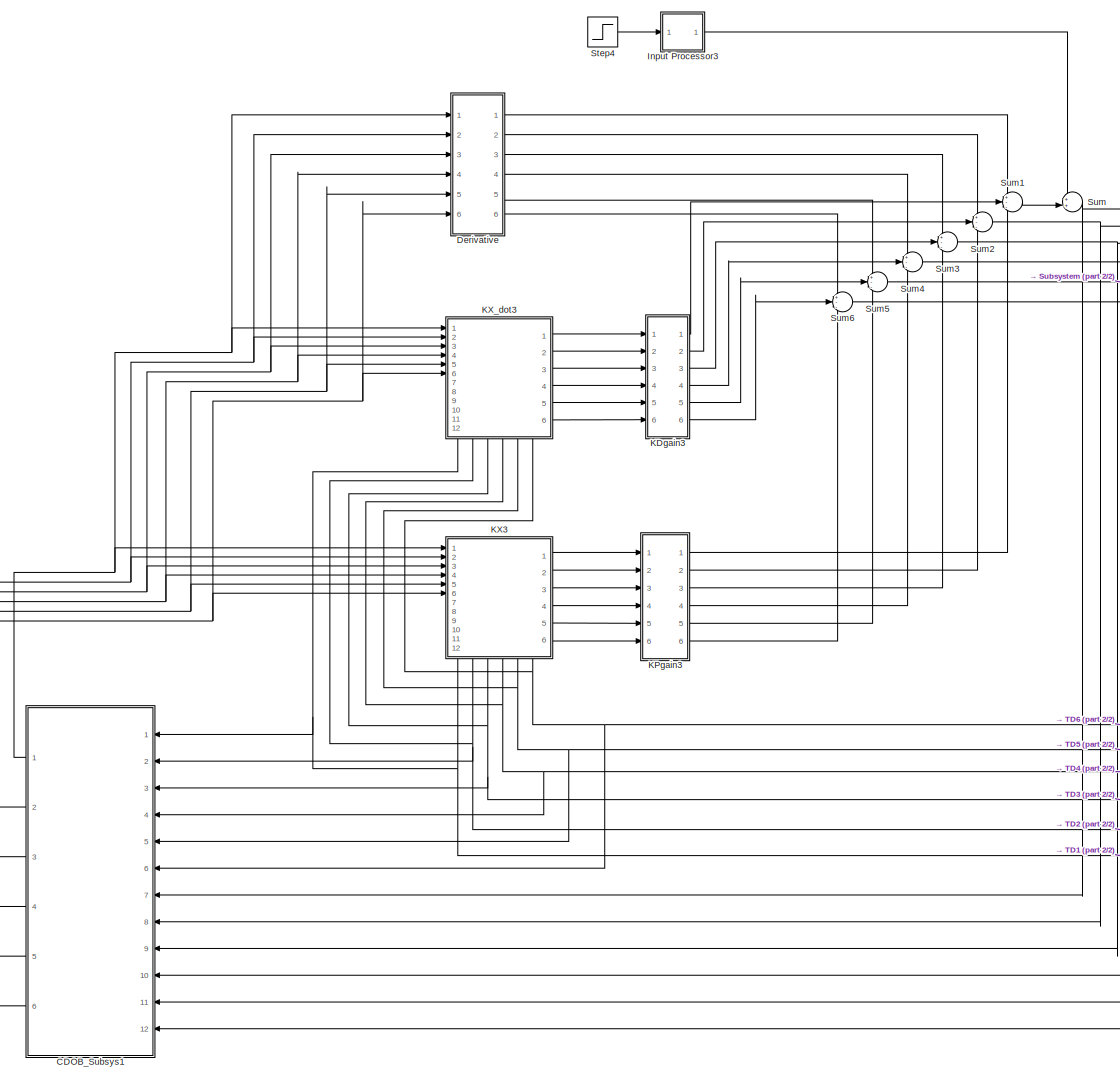
[diagram: root canvas - part 1/2, center side, full height]
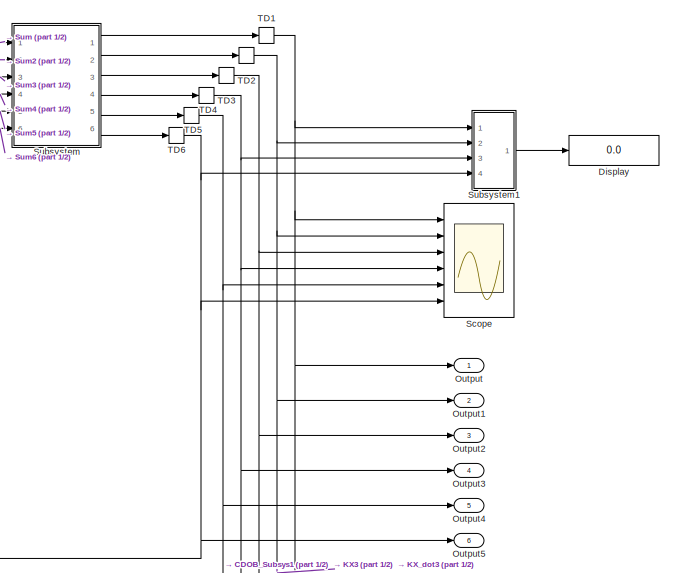
[diagram: root canvas - part 2/2, middle right region]
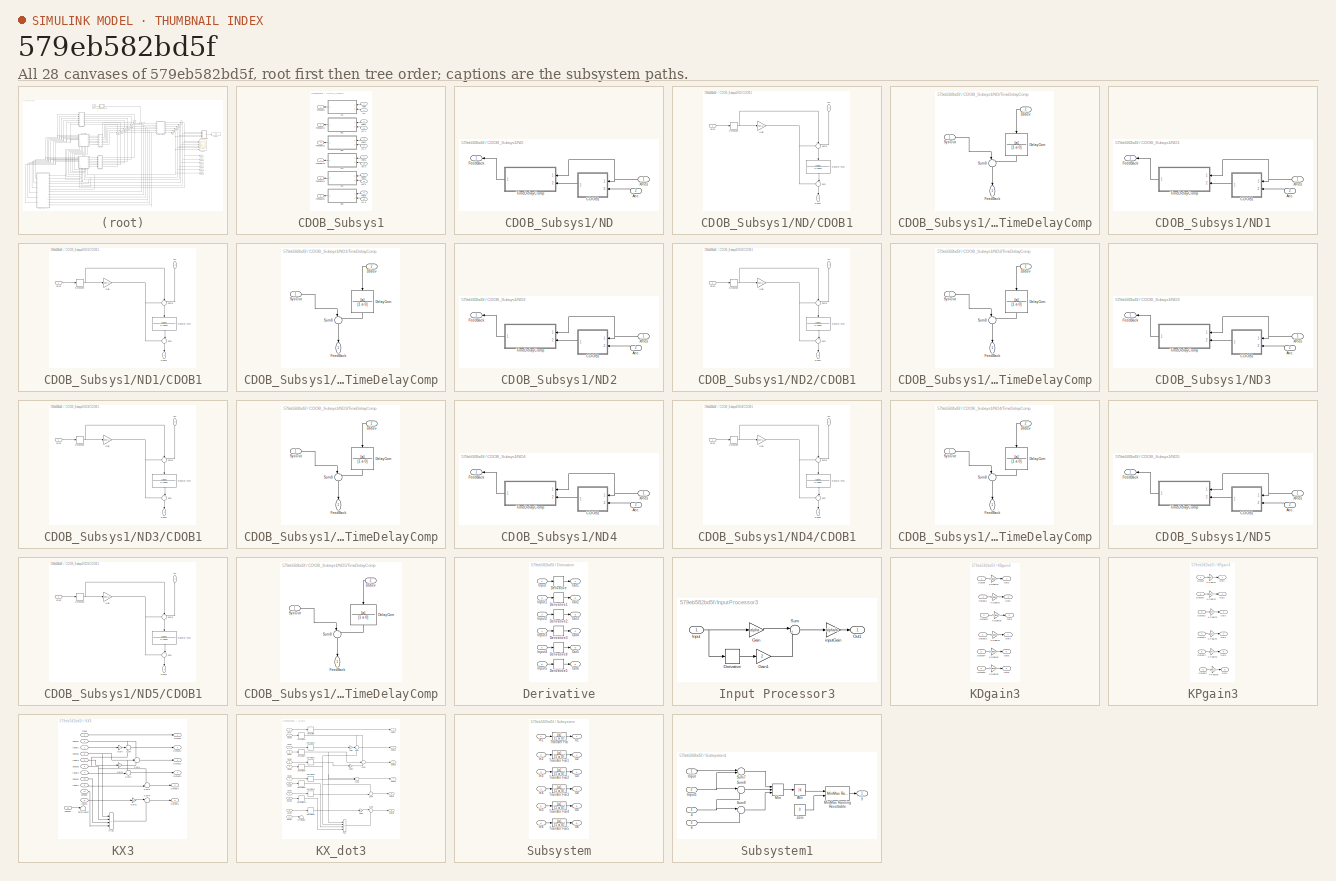
[diagram: thumbnail index - all 28 canvases of the model, root first then tree order]
MODEL slx_579eb582bd5f
KIND model
CONFIG AbsTol = auto
CONFIG EnableMultiTasking = off
CONFIG FixedStep = auto
CONFIG MaxStep = auto
CONFIG MinStep = auto
CONFIG RelTol = 1e-3
CONFIG SampleTimeConstraint = Unconstrained
CONFIG SolverName = VariableStepAuto
CONFIG StartTime = 0.0
CONFIG StopTime = 60.0
BLOCK [SubSystem] CDOB_Subsys1
  NameLocation = top
  Ports = [12, 6]
  RequestExecContextInheritance = off
BLOCK [Inport] CDOB_Subsys1/Acc.
  Port = 7
BLOCK [Inport] CDOB_Subsys1/Acc.1
  Port = 8
BLOCK [Inport] CDOB_Subsys1/Acc.2
  Port = 9
BLOCK [Inport] CDOB_Subsys1/Acc.3
  Port = 10
BLOCK [Inport] CDOB_Subsys1/Acc.4
  Port = 11
BLOCK [Inport] CDOB_Subsys1/Acc.5
  Port = 12
BLOCK [Outport] CDOB_Subsys1/FeedBack
BLOCK [Outport] CDOB_Subsys1/FeedBack1
  Port = 2
BLOCK [Outport] CDOB_Subsys1/FeedBack2
  Port = 3
BLOCK [Outport] CDOB_Subsys1/FeedBack3
  Port = 4
BLOCK [Outport] CDOB_Subsys1/FeedBack4
  Port = 5
BLOCK [Outport] CDOB_Subsys1/FeedBack5
  Port = 6
BLOCK [SubSystem] CDOB_Subsys1/ND
  NameLocation = top
  Ports = [2, 1]
  RequestExecContextInheritance = off
BLOCK [Inport] CDOB_Subsys1/ND/Acc.
  Port = 2
BLOCK [SubSystem] CDOB_Subsys1/ND/CDOB1
  NameLocation = top
  Ports = [2, 1]
  RequestExecContextInheritance = off
BLOCK [Inport] CDOB_Subsys1/ND/CDOB1/Acc.
  NameLocation = left
  Port = 2
BLOCK [Derivative] CDOB_Subsys1/ND/CDOB1/Derivative
  CoefficientInTFapproximation = 0
BLOCK [Outport] CDOB_Subsys1/ND/CDOB1/Dobsv
  NameLocation = left
BLOCK [Gain] CDOB_Subsys1/ND/CDOB1/Gain
  Gain = gnet/a
BLOCK [Sum] CDOB_Subsys1/ND/CDOB1/Sum
  Inputs = -+|
  NameLocation = left
  Ports = [2, 1]
BLOCK [Sum] CDOB_Subsys1/ND/CDOB1/Sum8
  Inputs = +-+
  NameLocation = left
  Ports = [3, 1]
BLOCK [TransferFcn] CDOB_Subsys1/ND/CDOB1/Transfer Fcn2
  Denominator = [1 gnet]
  NameLocation = left
  Numerator = [gnet]
BLOCK [Inport] CDOB_Subsys1/ND/CDOB1/XRes
BLOCK [Outport] CDOB_Subsys1/ND/FeedBack
BLOCK [SubSystem] CDOB_Subsys1/ND/TimeDelayComp
  NameLocation = top
  Ports = [2, 1]
  RequestExecContextInheritance = off
BLOCK [TransferFcn] CDOB_Subsys1/ND/TimeDelayComp/DelayCom
  Denominator = [1 a 0]
  NameLocation = left
  Numerator = [a]
BLOCK [Inport] CDOB_Subsys1/ND/TimeDelayComp/Dobsv
  NameLocation = top
  Port = 2
BLOCK [Outport] CDOB_Subsys1/ND/TimeDelayComp/FeedBack
  NameLocation = left
BLOCK [Sum] CDOB_Subsys1/ND/TimeDelayComp/Sum8
  Inputs = |++
  NameLocation = left
  Ports = [2, 1]
BLOCK [Inport] CDOB_Subsys1/ND/TimeDelayComp/SysOut
BLOCK [Inport] CDOB_Subsys1/ND/XRes
BLOCK [SubSystem] CDOB_Subsys1/ND1
  NameLocation = top
  Ports = [2, 1]
  RequestExecContextInheritance = off
BLOCK [Inport] CDOB_Subsys1/ND1/Acc.
  Port = 2
BLOCK [SubSystem] CDOB_Subsys1/ND1/CDOB1
  NameLocation = top
  Ports = [2, 1]
  RequestExecContextInheritance = off
BLOCK [Inport] CDOB_Subsys1/ND1/CDOB1/Acc.
  NameLocation = left
  Port = 2
BLOCK [Derivative] CDOB_Subsys1/ND1/CDOB1/Derivative
  CoefficientInTFapproximation = 0
BLOCK [Outport] CDOB_Subsys1/ND1/CDOB1/Dobsv
  NameLocation = left
BLOCK [Gain] CDOB_Subsys1/ND1/CDOB1/Gain
  Gain = gnet/a
BLOCK [Sum] CDOB_Subsys1/ND1/CDOB1/Sum
  Inputs = -+|
  NameLocation = left
  Ports = [2, 1]
BLOCK [Sum] CDOB_Subsys1/ND1/CDOB1/Sum8
  Inputs = +-+
  NameLocation = left
  Ports = [3, 1]
BLOCK [TransferFcn] CDOB_Subsys1/ND1/CDOB1/Transfer Fcn2
  Denominator = [1 gnet]
  NameLocation = left
  Numerator = [gnet]
BLOCK [Inport] CDOB_Subsys1/ND1/CDOB1/XRes
BLOCK [Outport] CDOB_Subsys1/ND1/FeedBack
BLOCK [SubSystem] CDOB_Subsys1/ND1/TimeDelayComp
  NameLocation = top
  Ports = [2, 1]
  RequestExecContextInheritance = off
BLOCK [TransferFcn] CDOB_Subsys1/ND1/TimeDelayComp/DelayCom
  Denominator = [1 a 0]
  NameLocation = left
  Numerator = [a]
BLOCK [Inport] CDOB_Subsys1/ND1/TimeDelayComp/Dobsv
  NameLocation = top
  Port = 2
BLOCK [Outport] CDOB_Subsys1/ND1/TimeDelayComp/FeedBack
  NameLocation = left
BLOCK [Sum] CDOB_Subsys1/ND1/TimeDelayComp/Sum8
  Inputs = |++
  NameLocation = left
  Ports = [2, 1]
BLOCK [Inport] CDOB_Subsys1/ND1/TimeDelayComp/SysOut
BLOCK [Inport] CDOB_Subsys1/ND1/XRes
BLOCK [SubSystem] CDOB_Subsys1/ND2
  NameLocation = top
  Ports = [2, 1]
  RequestExecContextInheritance = off
BLOCK [Inport] CDOB_Subsys1/ND2/Acc.
  Port = 2
BLOCK [SubSystem] CDOB_Subsys1/ND2/CDOB1
  NameLocation = top
  Ports = [2, 1]
  RequestExecContextInheritance = off
BLOCK [Inport] CDOB_Subsys1/ND2/CDOB1/Acc.
  NameLocation = left
  Port = 2
BLOCK [Derivative] CDOB_Subsys1/ND2/CDOB1/Derivative
  CoefficientInTFapproximation = 0
BLOCK [Outport] CDOB_Subsys1/ND2/CDOB1/Dobsv
  NameLocation = left
BLOCK [Gain] CDOB_Subsys1/ND2/CDOB1/Gain
  Gain = gnet/a
BLOCK [Sum] CDOB_Subsys1/ND2/CDOB1/Sum
  Inputs = -+|
  NameLocation = left
  Ports = [2, 1]
BLOCK [Sum] CDOB_Subsys1/ND2/CDOB1/Sum8
  Inputs = +-+
  NameLocation = left
  Ports = [3, 1]
BLOCK [TransferFcn] CDOB_Subsys1/ND2/CDOB1/Transfer Fcn2
  Denominator = [1 gnet]
  NameLocation = left
  Numerator = [gnet]
BLOCK [Inport] CDOB_Subsys1/ND2/CDOB1/XRes
BLOCK [Outport] CDOB_Subsys1/ND2/FeedBack
BLOCK [SubSystem] CDOB_Subsys1/ND2/TimeDelayComp
  NameLocation = top
  Ports = [2, 1]
  RequestExecContextInheritance = off
BLOCK [TransferFcn] CDOB_Subsys1/ND2/TimeDelayComp/DelayCom
  Denominator = [1 a 0]
  NameLocation = left
  Numerator = [a]
BLOCK [Inport] CDOB_Subsys1/ND2/TimeDelayComp/Dobsv
  NameLocation = top
  Port = 2
BLOCK [Outport] CDOB_Subsys1/ND2/TimeDelayComp/FeedBack
  NameLocation = left
BLOCK [Sum] CDOB_Subsys1/ND2/TimeDelayComp/Sum8
  Inputs = |++
  NameLocation = left
  Ports = [2, 1]
BLOCK [Inport] CDOB_Subsys1/ND2/TimeDelayComp/SysOut
BLOCK [Inport] CDOB_Subsys1/ND2/XRes
BLOCK [SubSystem] CDOB_Subsys1/ND3
  NameLocation = top
  Ports = [2, 1]
  RequestExecContextInheritance = off
BLOCK [Inport] CDOB_Subsys1/ND3/Acc.
  Port = 2
BLOCK [SubSystem] CDOB_Subsys1/ND3/CDOB1
  NameLocation = top
  Ports = [2, 1]
  RequestExecContextInheritance = off
BLOCK [Inport] CDOB_Subsys1/ND3/CDOB1/Acc.
  NameLocation = left
  Port = 2
BLOCK [Derivative] CDOB_Subsys1/ND3/CDOB1/Derivative
  CoefficientInTFapproximation = 0
BLOCK [Outport] CDOB_Subsys1/ND3/CDOB1/Dobsv
  NameLocation = left
BLOCK [Gain] CDOB_Subsys1/ND3/CDOB1/Gain
  Gain = gnet/a
BLOCK [Sum] CDOB_Subsys1/ND3/CDOB1/Sum
  Inputs = -+|
  NameLocation = left
  Ports = [2, 1]
BLOCK [Sum] CDOB_Subsys1/ND3/CDOB1/Sum8
  Inputs = +-+
  NameLocation = left
  Ports = [3, 1]
BLOCK [TransferFcn] CDOB_Subsys1/ND3/CDOB1/Transfer Fcn2
  Denominator = [1 gnet]
  NameLocation = left
  Numerator = [gnet]
BLOCK [Inport] CDOB_Subsys1/ND3/CDOB1/XRes
BLOCK [Outport] CDOB_Subsys1/ND3/FeedBack
BLOCK [SubSystem] CDOB_Subsys1/ND3/TimeDelayComp
  NameLocation = top
  Ports = [2, 1]
  RequestExecContextInheritance = off
BLOCK [TransferFcn] CDOB_Subsys1/ND3/TimeDelayComp/DelayCom
  Denominator = [1 a 0]
  NameLocation = left
  Numerator = [a]
BLOCK [Inport] CDOB_Subsys1/ND3/TimeDelayComp/Dobsv
  NameLocation = top
  Port = 2
BLOCK [Outport] CDOB_Subsys1/ND3/TimeDelayComp/FeedBack
  NameLocation = left
BLOCK [Sum] CDOB_Subsys1/ND3/TimeDelayComp/Sum8
  Inputs = |++
  NameLocation = left
  Ports = [2, 1]
BLOCK [Inport] CDOB_Subsys1/ND3/TimeDelayComp/SysOut
BLOCK [Inport] CDOB_Subsys1/ND3/XRes
BLOCK [SubSystem] CDOB_Subsys1/ND4
  NameLocation = top
  Ports = [2, 1]
  RequestExecContextInheritance = off
BLOCK [Inport] CDOB_Subsys1/ND4/Acc.
  Port = 2
BLOCK [SubSystem] CDOB_Subsys1/ND4/CDOB1
  NameLocation = top
  Ports = [2, 1]
  RequestExecContextInheritance = off
BLOCK [Inport] CDOB_Subsys1/ND4/CDOB1/Acc.
  NameLocation = left
  Port = 2
BLOCK [Derivative] CDOB_Subsys1/ND4/CDOB1/Derivative
  CoefficientInTFapproximation = 0
BLOCK [Outport] CDOB_Subsys1/ND4/CDOB1/Dobsv
  NameLocation = left
BLOCK [Gain] CDOB_Subsys1/ND4/CDOB1/Gain
  Gain = gnet/a
BLOCK [Sum] CDOB_Subsys1/ND4/CDOB1/Sum
  Inputs = -+|
  NameLocation = left
  Ports = [2, 1]
BLOCK [Sum] CDOB_Subsys1/ND4/CDOB1/Sum8
  Inputs = +-+
  NameLocation = left
  Ports = [3, 1]
BLOCK [TransferFcn] CDOB_Subsys1/ND4/CDOB1/Transfer Fcn2
  Denominator = [1 gnet]
  NameLocation = left
  Numerator = [gnet]
BLOCK [Inport] CDOB_Subsys1/ND4/CDOB1/XRes
BLOCK [Outport] CDOB_Subsys1/ND4/FeedBack
BLOCK [SubSystem] CDOB_Subsys1/ND4/TimeDelayComp
  NameLocation = top
  Ports = [2, 1]
  RequestExecContextInheritance = off
BLOCK [TransferFcn] CDOB_Subsys1/ND4/TimeDelayComp/DelayCom
  Denominator = [1 a 0]
  NameLocation = left
  Numerator = [a]
BLOCK [Inport] CDOB_Subsys1/ND4/TimeDelayComp/Dobsv
  NameLocation = top
  Port = 2
BLOCK [Outport] CDOB_Subsys1/ND4/TimeDelayComp/FeedBack
  NameLocation = left
BLOCK [Sum] CDOB_Subsys1/ND4/TimeDelayComp/Sum8
  Inputs = |++
  NameLocation = left
  Ports = [2, 1]
BLOCK [Inport] CDOB_Subsys1/ND4/TimeDelayComp/SysOut
BLOCK [Inport] CDOB_Subsys1/ND4/XRes
BLOCK [SubSystem] CDOB_Subsys1/ND5
  NameLocation = top
  Ports = [2, 1]
  RequestExecContextInheritance = off
BLOCK [Inport] CDOB_Subsys1/ND5/Acc.
  Port = 2
BLOCK [SubSystem] CDOB_Subsys1/ND5/CDOB1
  NameLocation = top
  Ports = [2, 1]
  RequestExecContextInheritance = off
BLOCK [Inport] CDOB_Subsys1/ND5/CDOB1/Acc.
  NameLocation = left
  Port = 2
BLOCK [Derivative] CDOB_Subsys1/ND5/CDOB1/Derivative
  CoefficientInTFapproximation = 0
BLOCK [Outport] CDOB_Subsys1/ND5/CDOB1/Dobsv
  NameLocation = left
BLOCK [Gain] CDOB_Subsys1/ND5/CDOB1/Gain
  Gain = gnet/a
BLOCK [Sum] CDOB_Subsys1/ND5/CDOB1/Sum
  Inputs = -+|
  NameLocation = left
  Ports = [2, 1]
BLOCK [Sum] CDOB_Subsys1/ND5/CDOB1/Sum8
  Inputs = +-+
  NameLocation = left
  Ports = [3, 1]
BLOCK [TransferFcn] CDOB_Subsys1/ND5/CDOB1/Transfer Fcn2
  Denominator = [1 gnet]
  NameLocation = left
  Numerator = [gnet]
BLOCK [Inport] CDOB_Subsys1/ND5/CDOB1/XRes
BLOCK [Outport] CDOB_Subsys1/ND5/FeedBack
BLOCK [SubSystem] CDOB_Subsys1/ND5/TimeDelayComp
  NameLocation = top
  Ports = [2, 1]
  RequestExecContextInheritance = off
BLOCK [TransferFcn] CDOB_Subsys1/ND5/TimeDelayComp/DelayCom
  Denominator = [1 a 0]
  NameLocation = left
  Numerator = [a]
BLOCK [Inport] CDOB_Subsys1/ND5/TimeDelayComp/Dobsv
  NameLocation = top
  Port = 2
BLOCK [Outport] CDOB_Subsys1/ND5/TimeDelayComp/FeedBack
  NameLocation = left
BLOCK [Sum] CDOB_Subsys1/ND5/TimeDelayComp/Sum8
  Inputs = |++
  NameLocation = left
  Ports = [2, 1]
BLOCK [Inport] CDOB_Subsys1/ND5/TimeDelayComp/SysOut
BLOCK [Inport] CDOB_Subsys1/ND5/XRes
BLOCK [Inport] CDOB_Subsys1/XRes
BLOCK [Inport] CDOB_Subsys1/XRes1
  Port = 2
BLOCK [Inport] CDOB_Subsys1/XRes2
  Port = 3
BLOCK [Inport] CDOB_Subsys1/XRes3
  Port = 4
BLOCK [Inport] CDOB_Subsys1/XRes4
  Port = 5
BLOCK [Inport] CDOB_Subsys1/XRes5
  Port = 6
BLOCK [SubSystem] Derivative
  Ports = [6, 6]
  RequestExecContextInheritance = off
BLOCK [Derivative] Derivative/Derivative
BLOCK [Derivative] Derivative/Derivative1
BLOCK [Derivative] Derivative/Derivative2
BLOCK [Derivative] Derivative/Derivative3
BLOCK [Derivative] Derivative/Derivative4
BLOCK [Derivative] Derivative/Derivative5
BLOCK [Inport] Derivative/Input
BLOCK [Inport] Derivative/Input1
  Port = 2
BLOCK [Inport] Derivative/Input2
  Port = 3
BLOCK [Inport] Derivative/Input3
  Port = 4
BLOCK [Inport] Derivative/Input4
  Port = 5
BLOCK [Inport] Derivative/Input5
  Port = 6
BLOCK [Outport] Derivative/Out1
BLOCK [Outport] Derivative/Out2
  Port = 2
BLOCK [Outport] Derivative/Out3
  Port = 3
BLOCK [Outport] Derivative/Out4
  Port = 4
BLOCK [Outport] Derivative/Out5
  Port = 5
BLOCK [Outport] Derivative/Out6
  Port = 6
BLOCK [Display] Display
  Decimation = 1
  Ports = [1]
BLOCK [SubSystem] Input Processor3
  Ports = [1, 1]
  RequestExecContextInheritance = off
BLOCK [Derivative] Input Processor3/Derivative
BLOCK [Gain] Input Processor3/Gain
  Gain = alpha
BLOCK [Gain] Input Processor3/Gain1
  Gain = 2
BLOCK [Inport] Input Processor3/Input
BLOCK [Outport] Input Processor3/Out1
BLOCK [Sum] Input Processor3/Sum
  Inputs = |++
  Ports = [2, 1]
BLOCK [Gain] Input Processor3/inputGain
  Gain = alpha/a
BLOCK [SubSystem] KDgain3
  Ports = [6, 6]
  RequestExecContextInheritance = off
BLOCK [Gain] KDgain3/KDgain1
  Gain = 2*alpha/a
BLOCK [Gain] KDgain3/KDgain2
  Gain = 2*alpha/a
BLOCK [Gain] KDgain3/KDgain3
  Gain = 2*alpha/a
BLOCK [Gain] KDgain3/KDgain4
  Gain = 2*alpha/a
BLOCK [Gain] KDgain3/KDgain5
  Gain = 2*alpha/a
BLOCK [Gain] KDgain3/KDgain6
  Gain = 2*alpha/a
BLOCK [Outport] KDgain3/Out1
BLOCK [Outport] KDgain3/Out2
  Port = 2
BLOCK [Outport] KDgain3/Out3
  Port = 3
BLOCK [Outport] KDgain3/Out4
  Port = 4
BLOCK [Outport] KDgain3/Out5
  Port = 5
BLOCK [Outport] KDgain3/Out6
  Port = 6
BLOCK [Inport] KDgain3/Output
BLOCK [Inport] KDgain3/Output1
  Port = 2
BLOCK [Inport] KDgain3/Output2
  Port = 3
BLOCK [Inport] KDgain3/Output3
  Port = 4
BLOCK [Inport] KDgain3/Output4
  Port = 5
BLOCK [Inport] KDgain3/Output5
  Port = 6
BLOCK [SubSystem] KPgain3
  Ports = [6, 6]
  RequestExecContextInheritance = off
BLOCK [Gain] KPgain3/KPgain1
  Gain = alpha^2/a
BLOCK [Gain] KPgain3/KPgain2
  Gain = alpha^2/a
BLOCK [Gain] KPgain3/KPgain3
  Gain = alpha^2/a
BLOCK [Gain] KPgain3/KPgain4
  Gain = alpha^2/a
BLOCK [Gain] KPgain3/KPgain5
  Gain = alpha^2/a
BLOCK [Gain] KPgain3/KPgain6
  Gain = alpha^2/a
BLOCK [Outport] KPgain3/Out1
BLOCK [Outport] KPgain3/Out2
  Port = 2
BLOCK [Outport] KPgain3/Out3
  Port = 3
BLOCK [Outport] KPgain3/Out4
  Port = 4
BLOCK [Outport] KPgain3/Out5
  Port = 5
BLOCK [Outport] KPgain3/Out6
  Port = 6
BLOCK [Inport] KPgain3/Output
BLOCK [Inport] KPgain3/Output1
  Port = 2
BLOCK [Inport] KPgain3/Output2
  Port = 3
BLOCK [Inport] KPgain3/Output3
  Port = 4
BLOCK [Inport] KPgain3/Output4
  Port = 5
BLOCK [Inport] KPgain3/Output5
  Port = 6
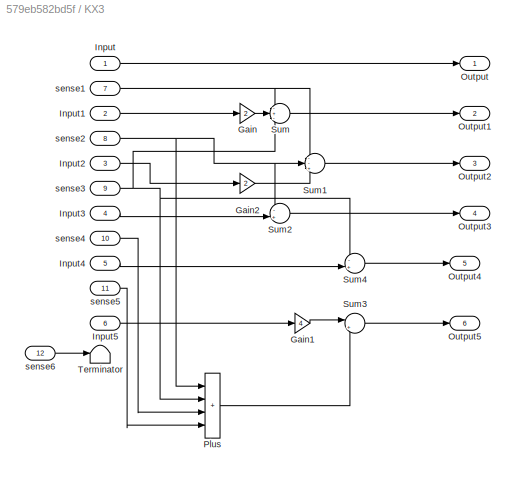
BLOCK [SubSystem] KX3
  NameLocation = top
  PortSchema = {"entries":[{"content":{"sides":[{"content":{"connectorIds":["In1","In2","In3","In4","In5","In6"]},"type":"ConnectorPlacement.EquallySpacedRectSide","uuid":"24ff0189-2e26-4de2-9c90-2043606e3d63"},{"content":{"connectorIds":["Out1","Out2","Out3","Out4","Out5","Out6"],"side":"RIGHT"},"type":"ConnectorPlacement.EquallySpacedRectSide","uuid":"7efe01dd-8101-429e-adc6-a10b45356e48"},{"content":{"connect...<+487ch>
  Ports = [12, 6]
  RequestExecContextInheritance = off
BLOCK [Gain] KX3/Gain
  Gain = 2
BLOCK [Gain] KX3/Gain1
  Gain = 4
BLOCK [Gain] KX3/Gain2
  Gain = 2
BLOCK [Inport] KX3/Input
BLOCK [Inport] KX3/Input1
  Port = 2
BLOCK [Inport] KX3/Input2
  Port = 3
BLOCK [Inport] KX3/Input3
  Port = 4
BLOCK [Inport] KX3/Input4
  Port = 5
BLOCK [Inport] KX3/Input5
  Port = 6
BLOCK [Outport] KX3/Output
BLOCK [Outport] KX3/Output1
  Port = 2
BLOCK [Outport] KX3/Output2
  Port = 3
BLOCK [Outport] KX3/Output3
  Port = 4
BLOCK [Outport] KX3/Output4
  Port = 5
BLOCK [Outport] KX3/Output5
  Port = 6
BLOCK [Sum] KX3/Plus
  IconShape = rectangular
  Inputs = ++++
  Ports = [4, 1]
BLOCK [Sum] KX3/Sum
  Inputs = -+-
  Ports = [3, 1]
BLOCK [Sum] KX3/Sum1
  Inputs = --+
  Ports = [3, 1]
BLOCK [Sum] KX3/Sum2
  Inputs = -+|
  Ports = [2, 1]
BLOCK [Sum] KX3/Sum3
  Inputs = |+-
  Ports = [2, 1]
BLOCK [Sum] KX3/Sum4
  Inputs = -+|
  Ports = [2, 1]
BLOCK [Terminator] KX3/Terminator
BLOCK [Inport] KX3/sense1
  Port = 7
BLOCK [Inport] KX3/sense2
  Port = 8
BLOCK [Inport] KX3/sense3
  Port = 9
BLOCK [Inport] KX3/sense4
  Port = 10
BLOCK [Inport] KX3/sense5
  Port = 11
BLOCK [Inport] KX3/sense6
  Port = 12
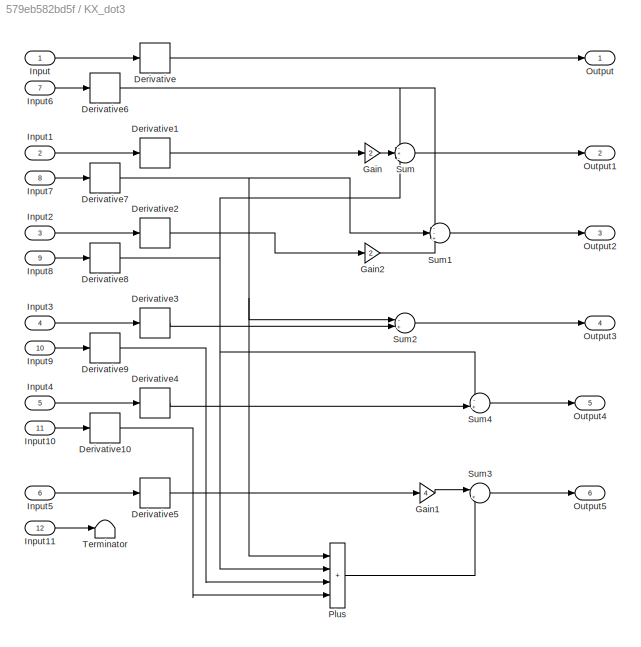
BLOCK [SubSystem] KX_dot3
  NameLocation = top
  PortSchema = {"entries":[{"content":{"sides":[{"content":{"connectorIds":["In1","In2","In3","In4","In5","In6"]},"type":"ConnectorPlacement.EquallySpacedRectSide","uuid":"24ff0189-2e26-4de2-9c90-2043606e3d63"},{"content":{"connectorIds":["Out1","Out2","Out3","Out4","Out5","Out6"],"side":"RIGHT"},"type":"ConnectorPlacement.EquallySpacedRectSide","uuid":"7efe01dd-8101-429e-adc6-a10b45356e48"},{"content":{"connect...<+487ch>
  Ports = [12, 6]
  RequestExecContextInheritance = off
BLOCK [Derivative] KX_dot3/Derivative
BLOCK [Derivative] KX_dot3/Derivative1
BLOCK [Derivative] KX_dot3/Derivative10
BLOCK [Derivative] KX_dot3/Derivative2
BLOCK [Derivative] KX_dot3/Derivative3
BLOCK [Derivative] KX_dot3/Derivative4
BLOCK [Derivative] KX_dot3/Derivative5
BLOCK [Derivative] KX_dot3/Derivative6
BLOCK [Derivative] KX_dot3/Derivative7
BLOCK [Derivative] KX_dot3/Derivative8
BLOCK [Derivative] KX_dot3/Derivative9
BLOCK [Gain] KX_dot3/Gain
  Gain = 2
BLOCK [Gain] KX_dot3/Gain1
  Gain = 4
BLOCK [Gain] KX_dot3/Gain2
  Gain = 2
BLOCK [Inport] KX_dot3/Input
BLOCK [Inport] KX_dot3/Input1
  Port = 2
BLOCK [Inport] KX_dot3/Input10
  Port = 11
BLOCK [Inport] KX_dot3/Input11
  Port = 12
BLOCK [Inport] KX_dot3/Input2
  Port = 3
BLOCK [Inport] KX_dot3/Input3
  Port = 4
BLOCK [Inport] KX_dot3/Input4
  Port = 5
BLOCK [Inport] KX_dot3/Input5
  Port = 6
BLOCK [Inport] KX_dot3/Input6
  Port = 7
BLOCK [Inport] KX_dot3/Input7
  Port = 8
BLOCK [Inport] KX_dot3/Input8
  Port = 9
BLOCK [Inport] KX_dot3/Input9
  Port = 10
BLOCK [Outport] KX_dot3/Output
BLOCK [Outport] KX_dot3/Output1
  Port = 2
BLOCK [Outport] KX_dot3/Output2
  Port = 3
BLOCK [Outport] KX_dot3/Output3
  Port = 4
BLOCK [Outport] KX_dot3/Output4
  Port = 5
BLOCK [Outport] KX_dot3/Output5
  Port = 6
BLOCK [Sum] KX_dot3/Plus
  IconShape = rectangular
  Inputs = ++++
  Ports = [4, 1]
BLOCK [Sum] KX_dot3/Sum
  Inputs = -+-
  Ports = [3, 1]
BLOCK [Sum] KX_dot3/Sum1
  Inputs = --+
  Ports = [3, 1]
BLOCK [Sum] KX_dot3/Sum2
  Inputs = -+|
  Ports = [2, 1]
BLOCK [Sum] KX_dot3/Sum3
  Inputs = |+-
  Ports = [2, 1]
BLOCK [Sum] KX_dot3/Sum4
  Inputs = -+|
  Ports = [2, 1]
BLOCK [Terminator] KX_dot3/Terminator
BLOCK [Outport] Output
BLOCK [Outport] Output1
  Port = 2
BLOCK [Outport] Output2
  Port = 3
BLOCK [Outport] Output3
  Port = 4
BLOCK [Outport] Output4
  Port = 5
BLOCK [Outport] Output5
  Port = 6
BLOCK [Scope] Scope
  Floating = off
  NumInputPorts = 6
  Ports = [6]
  ScopeSpecificationString = Simulink.scopes.TimeScopeBlockCfg('CurrentConfiguration', extmgr.ConfigurationSet(extmgr.Configuration('Core','General UI',true),extmgr.Configuration('Core','Source UI',true),extmgr.Configuration('Sources','WiredSimulink',true),extmgr.Configuration('Visuals','Time Domain',true,'SerializedDisplays',{struct('MinYLimReal','-0.12682','MaxYLimReal','1.14138','YLabelReal','','MinYLimMag','0.00000','MaxY...<+1384ch>
BLOCK [Step] Step4
  SampleTime = 0
  Time = 0
BLOCK [SubSystem] Subsystem
  Ports = [6, 6]
  RequestExecContextInheritance = off
BLOCK [Inport] Subsystem/In1
BLOCK [Inport] Subsystem/In2
  Port = 2
BLOCK [Inport] Subsystem/In3
  Port = 3
BLOCK [Inport] Subsystem/In4
  Port = 4
BLOCK [Inport] Subsystem/In5
  Port = 5
BLOCK [Inport] Subsystem/In6
  Port = 6
BLOCK [Outport] Subsystem/O1
BLOCK [Outport] Subsystem/O2
  Port = 2
BLOCK [Outport] Subsystem/O3
  Port = 3
BLOCK [Outport] Subsystem/O4
  Port = 4
BLOCK [Outport] Subsystem/O5
  Port = 5
BLOCK [Outport] Subsystem/O6
  Port = 6
BLOCK [TransferFcn] Subsystem/Transfer Fcn
  Denominator = [1 a 0]
  Numerator = [a]
BLOCK [TransferFcn] Subsystem/Transfer Fcn1
  Denominator = [1 a 0]
  Numerator = [a]
BLOCK [TransferFcn] Subsystem/Transfer Fcn2
  Denominator = [1 a 0]
  Numerator = [a]
BLOCK [TransferFcn] Subsystem/Transfer Fcn3
  Denominator = [1 a 0]
  Numerator = [a]
BLOCK [TransferFcn] Subsystem/Transfer Fcn4
  Denominator = [1 a 0]
  Numerator = [a]
BLOCK [TransferFcn] Subsystem/Transfer Fcn5
  Denominator = [1 a 0]
  Numerator = [a]
BLOCK [SubSystem] Subsystem1
  Ports = [4, 1]
  RequestExecContextInheritance = off
BLOCK [Inport] Subsystem1/4
  Port = 3
BLOCK [Inport] Subsystem1/6
  Port = 4
BLOCK [Abs] Subsystem1/Abs
  SaturateOnIntegerOverflow = off
BLOCK [Inport] Subsystem1/Input
BLOCK [Inport] Subsystem1/Input1
  Port = 2
BLOCK [MinMax] Subsystem1/Min
  Function = max
  Inputs = 3
  Ports = [3, 1]
BLOCK [Reference] Subsystem1/MinMax Running Resettable  REF=simulink/Math
Operations/MinMax
Running
Resettable
  Ports = [2, 1]
  SourceBlock = simulink/Math\nOperations/MinMax\nRunning\nResettable
  SourceProductBaseCode = SL
  SourceType = MinMax Running Resettable
BLOCK [Sum] Subsystem1/Sum7
  Inputs = |+-
  Ports = [2, 1]
BLOCK [Sum] Subsystem1/Sum8
  Inputs = |+-
  Ports = [2, 1]
BLOCK [Sum] Subsystem1/Sum9
  Inputs = |+-
  Ports = [2, 1]
BLOCK [Constant] Subsystem1/Zero
  OutDataTypeStr = Inherit: Inherit via back propagation
  Value = 0
BLOCK [Outport] Subsystem1/y
BLOCK [Sum] Sum
  Inputs = ++|
  Ports = [2, 1]
BLOCK [Sum] Sum1
  Inputs = +--
  Ports = [3, 1]
BLOCK [Sum] Sum2
  Inputs = +--
  Ports = [3, 1]
BLOCK [Sum] Sum3
  Inputs = +--
  Ports = [3, 1]
BLOCK [Sum] Sum4
  Inputs = +--
  Ports = [3, 1]
BLOCK [Sum] Sum5
  Inputs = +--
  Ports = [3, 1]
BLOCK [Sum] Sum6
  Inputs = +--
  Ports = [3, 1]
BLOCK [TransportDelay] TD1
  DelayTime = delay_a
  Ports = [1, 1]
BLOCK [TransportDelay] TD2
  DelayTime = delay_a
  Ports = [1, 1]
BLOCK [TransportDelay] TD3
  DelayTime = delay_a
  Ports = [1, 1]
BLOCK [TransportDelay] TD4
  DelayTime = delay_a
  Ports = [1, 1]
BLOCK [TransportDelay] TD5
  DelayTime = delay_a
  Ports = [1, 1]
BLOCK [TransportDelay] TD6
  DelayTime = delay_a
  Ports = [1, 1]
LINE CDOB_Subsys1/Acc.1:1 -> CDOB_Subsys1/ND1:2
LINE CDOB_Subsys1/Acc.2:1 -> CDOB_Subsys1/ND2:2
LINE CDOB_Subsys1/Acc.3:1 -> CDOB_Subsys1/ND3:2
LINE CDOB_Subsys1/Acc.4:1 -> CDOB_Subsys1/ND4:2
LINE CDOB_Subsys1/Acc.5:1 -> CDOB_Subsys1/ND5:2
LINE CDOB_Subsys1/Acc.:1 -> CDOB_Subsys1/ND:2
LINE CDOB_Subsys1/ND/Acc.:1 -> CDOB_Subsys1/ND/CDOB1:2
LINE CDOB_Subsys1/ND/CDOB1/Acc.:1 -> CDOB_Subsys1/ND/CDOB1/Sum8:3
NET CDOB_Subsys1/ND/CDOB1/Derivative:1 -> CDOB_Subsys1/ND/CDOB1/Gain:1, CDOB_Subsys1/ND/CDOB1/Sum8:2
NET CDOB_Subsys1/ND/CDOB1/Gain:1 -> CDOB_Subsys1/ND/CDOB1/Sum8:1, CDOB_Subsys1/ND/CDOB1/Sum:1
LINE CDOB_Subsys1/ND/CDOB1/Sum8:1 -> CDOB_Subsys1/ND/CDOB1/Transfer Fcn2:1
LINE CDOB_Subsys1/ND/CDOB1/Sum:1 -> CDOB_Subsys1/ND/CDOB1/Dobsv:1
LINE CDOB_Subsys1/ND/CDOB1/Transfer Fcn2:1 -> CDOB_Subsys1/ND/CDOB1/Sum:2
LINE CDOB_Subsys1/ND/CDOB1/XRes:1 -> CDOB_Subsys1/ND/CDOB1/Derivative:1
LINE CDOB_Subsys1/ND/CDOB1:1 -> CDOB_Subsys1/ND/TimeDelayComp:2
LINE CDOB_Subsys1/ND/TimeDelayComp/DelayCom:1 -> CDOB_Subsys1/ND/TimeDelayComp/Sum8:2
LINE CDOB_Subsys1/ND/TimeDelayComp/Dobsv:1 -> CDOB_Subsys1/ND/TimeDelayComp/DelayCom:1
LINE CDOB_Subsys1/ND/TimeDelayComp/Sum8:1 -> CDOB_Subsys1/ND/TimeDelayComp/FeedBack:1
LINE CDOB_Subsys1/ND/TimeDelayComp/SysOut:1 -> CDOB_Subsys1/ND/TimeDelayComp/Sum8:1
LINE CDOB_Subsys1/ND/TimeDelayComp:1 -> CDOB_Subsys1/ND/FeedBack:1
NET CDOB_Subsys1/ND/XRes:1 -> CDOB_Subsys1/ND/CDOB1:1, CDOB_Subsys1/ND/TimeDelayComp:1
LINE CDOB_Subsys1/ND1/Acc.:1 -> CDOB_Subsys1/ND1/CDOB1:2
LINE CDOB_Subsys1/ND1/CDOB1/Acc.:1 -> CDOB_Subsys1/ND1/CDOB1/Sum8:3
NET CDOB_Subsys1/ND1/CDOB1/Derivative:1 -> CDOB_Subsys1/ND1/CDOB1/Gain:1, CDOB_Subsys1/ND1/CDOB1/Sum8:2
NET CDOB_Subsys1/ND1/CDOB1/Gain:1 -> CDOB_Subsys1/ND1/CDOB1/Sum8:1, CDOB_Subsys1/ND1/CDOB1/Sum:1
LINE CDOB_Subsys1/ND1/CDOB1/Sum8:1 -> CDOB_Subsys1/ND1/CDOB1/Transfer Fcn2:1
LINE CDOB_Subsys1/ND1/CDOB1/Sum:1 -> CDOB_Subsys1/ND1/CDOB1/Dobsv:1
LINE CDOB_Subsys1/ND1/CDOB1/Transfer Fcn2:1 -> CDOB_Subsys1/ND1/CDOB1/Sum:2
LINE CDOB_Subsys1/ND1/CDOB1/XRes:1 -> CDOB_Subsys1/ND1/CDOB1/Derivative:1
LINE CDOB_Subsys1/ND1/CDOB1:1 -> CDOB_Subsys1/ND1/TimeDelayComp:2
LINE CDOB_Subsys1/ND1/TimeDelayComp/DelayCom:1 -> CDOB_Subsys1/ND1/TimeDelayComp/Sum8:2
LINE CDOB_Subsys1/ND1/TimeDelayComp/Dobsv:1 -> CDOB_Subsys1/ND1/TimeDelayComp/DelayCom:1
LINE CDOB_Subsys1/ND1/TimeDelayComp/Sum8:1 -> CDOB_Subsys1/ND1/TimeDelayComp/FeedBack:1
LINE CDOB_Subsys1/ND1/TimeDelayComp/SysOut:1 -> CDOB_Subsys1/ND1/TimeDelayComp/Sum8:1
LINE CDOB_Subsys1/ND1/TimeDelayComp:1 -> CDOB_Subsys1/ND1/FeedBack:1
NET CDOB_Subsys1/ND1/XRes:1 -> CDOB_Subsys1/ND1/CDOB1:1, CDOB_Subsys1/ND1/TimeDelayComp:1
LINE CDOB_Subsys1/ND1:1 -> CDOB_Subsys1/FeedBack1:1
LINE CDOB_Subsys1/ND2/Acc.:1 -> CDOB_Subsys1/ND2/CDOB1:2
LINE CDOB_Subsys1/ND2/CDOB1/Acc.:1 -> CDOB_Subsys1/ND2/CDOB1/Sum8:3
NET CDOB_Subsys1/ND2/CDOB1/Derivative:1 -> CDOB_Subsys1/ND2/CDOB1/Gain:1, CDOB_Subsys1/ND2/CDOB1/Sum8:2
NET CDOB_Subsys1/ND2/CDOB1/Gain:1 -> CDOB_Subsys1/ND2/CDOB1/Sum8:1, CDOB_Subsys1/ND2/CDOB1/Sum:1
LINE CDOB_Subsys1/ND2/CDOB1/Sum8:1 -> CDOB_Subsys1/ND2/CDOB1/Transfer Fcn2:1
LINE CDOB_Subsys1/ND2/CDOB1/Sum:1 -> CDOB_Subsys1/ND2/CDOB1/Dobsv:1
LINE CDOB_Subsys1/ND2/CDOB1/Transfer Fcn2:1 -> CDOB_Subsys1/ND2/CDOB1/Sum:2
LINE CDOB_Subsys1/ND2/CDOB1/XRes:1 -> CDOB_Subsys1/ND2/CDOB1/Derivative:1
LINE CDOB_Subsys1/ND2/CDOB1:1 -> CDOB_Subsys1/ND2/TimeDelayComp:2
LINE CDOB_Subsys1/ND2/TimeDelayComp/DelayCom:1 -> CDOB_Subsys1/ND2/TimeDelayComp/Sum8:2
LINE CDOB_Subsys1/ND2/TimeDelayComp/Dobsv:1 -> CDOB_Subsys1/ND2/TimeDelayComp/DelayCom:1
LINE CDOB_Subsys1/ND2/TimeDelayComp/Sum8:1 -> CDOB_Subsys1/ND2/TimeDelayComp/FeedBack:1
LINE CDOB_Subsys1/ND2/TimeDelayComp/SysOut:1 -> CDOB_Subsys1/ND2/TimeDelayComp/Sum8:1
LINE CDOB_Subsys1/ND2/TimeDelayComp:1 -> CDOB_Subsys1/ND2/FeedBack:1
NET CDOB_Subsys1/ND2/XRes:1 -> CDOB_Subsys1/ND2/CDOB1:1, CDOB_Subsys1/ND2/TimeDelayComp:1
LINE CDOB_Subsys1/ND2:1 -> CDOB_Subsys1/FeedBack2:1
LINE CDOB_Subsys1/ND3/Acc.:1 -> CDOB_Subsys1/ND3/CDOB1:2
LINE CDOB_Subsys1/ND3/CDOB1/Acc.:1 -> CDOB_Subsys1/ND3/CDOB1/Sum8:3
NET CDOB_Subsys1/ND3/CDOB1/Derivative:1 -> CDOB_Subsys1/ND3/CDOB1/Gain:1, CDOB_Subsys1/ND3/CDOB1/Sum8:2
NET CDOB_Subsys1/ND3/CDOB1/Gain:1 -> CDOB_Subsys1/ND3/CDOB1/Sum8:1, CDOB_Subsys1/ND3/CDOB1/Sum:1
LINE CDOB_Subsys1/ND3/CDOB1/Sum8:1 -> CDOB_Subsys1/ND3/CDOB1/Transfer Fcn2:1
LINE CDOB_Subsys1/ND3/CDOB1/Sum:1 -> CDOB_Subsys1/ND3/CDOB1/Dobsv:1
LINE CDOB_Subsys1/ND3/CDOB1/Transfer Fcn2:1 -> CDOB_Subsys1/ND3/CDOB1/Sum:2
LINE CDOB_Subsys1/ND3/CDOB1/XRes:1 -> CDOB_Subsys1/ND3/CDOB1/Derivative:1
LINE CDOB_Subsys1/ND3/CDOB1:1 -> CDOB_Subsys1/ND3/TimeDelayComp:2
LINE CDOB_Subsys1/ND3/TimeDelayComp/DelayCom:1 -> CDOB_Subsys1/ND3/TimeDelayComp/Sum8:2
LINE CDOB_Subsys1/ND3/TimeDelayComp/Dobsv:1 -> CDOB_Subsys1/ND3/TimeDelayComp/DelayCom:1
LINE CDOB_Subsys1/ND3/TimeDelayComp/Sum8:1 -> CDOB_Subsys1/ND3/TimeDelayComp/FeedBack:1
LINE CDOB_Subsys1/ND3/TimeDelayComp/SysOut:1 -> CDOB_Subsys1/ND3/TimeDelayComp/Sum8:1
LINE CDOB_Subsys1/ND3/TimeDelayComp:1 -> CDOB_Subsys1/ND3/FeedBack:1
NET CDOB_Subsys1/ND3/XRes:1 -> CDOB_Subsys1/ND3/CDOB1:1, CDOB_Subsys1/ND3/TimeDelayComp:1
LINE CDOB_Subsys1/ND3:1 -> CDOB_Subsys1/FeedBack3:1
LINE CDOB_Subsys1/ND4/Acc.:1 -> CDOB_Subsys1/ND4/CDOB1:2
LINE CDOB_Subsys1/ND4/CDOB1/Acc.:1 -> CDOB_Subsys1/ND4/CDOB1/Sum8:3
NET CDOB_Subsys1/ND4/CDOB1/Derivative:1 -> CDOB_Subsys1/ND4/CDOB1/Gain:1, CDOB_Subsys1/ND4/CDOB1/Sum8:2
NET CDOB_Subsys1/ND4/CDOB1/Gain:1 -> CDOB_Subsys1/ND4/CDOB1/Sum8:1, CDOB_Subsys1/ND4/CDOB1/Sum:1
LINE CDOB_Subsys1/ND4/CDOB1/Sum8:1 -> CDOB_Subsys1/ND4/CDOB1/Transfer Fcn2:1
LINE CDOB_Subsys1/ND4/CDOB1/Sum:1 -> CDOB_Subsys1/ND4/CDOB1/Dobsv:1
LINE CDOB_Subsys1/ND4/CDOB1/Transfer Fcn2:1 -> CDOB_Subsys1/ND4/CDOB1/Sum:2
LINE CDOB_Subsys1/ND4/CDOB1/XRes:1 -> CDOB_Subsys1/ND4/CDOB1/Derivative:1
LINE CDOB_Subsys1/ND4/CDOB1:1 -> CDOB_Subsys1/ND4/TimeDelayComp:2
LINE CDOB_Subsys1/ND4/TimeDelayComp/DelayCom:1 -> CDOB_Subsys1/ND4/TimeDelayComp/Sum8:2
LINE CDOB_Subsys1/ND4/TimeDelayComp/Dobsv:1 -> CDOB_Subsys1/ND4/TimeDelayComp/DelayCom:1
LINE CDOB_Subsys1/ND4/TimeDelayComp/Sum8:1 -> CDOB_Subsys1/ND4/TimeDelayComp/FeedBack:1
LINE CDOB_Subsys1/ND4/TimeDelayComp/SysOut:1 -> CDOB_Subsys1/ND4/TimeDelayComp/Sum8:1
LINE CDOB_Subsys1/ND4/TimeDelayComp:1 -> CDOB_Subsys1/ND4/FeedBack:1
NET CDOB_Subsys1/ND4/XRes:1 -> CDOB_Subsys1/ND4/CDOB1:1, CDOB_Subsys1/ND4/TimeDelayComp:1
LINE CDOB_Subsys1/ND4:1 -> CDOB_Subsys1/FeedBack4:1
LINE CDOB_Subsys1/ND5/Acc.:1 -> CDOB_Subsys1/ND5/CDOB1:2
LINE CDOB_Subsys1/ND5/CDOB1/Acc.:1 -> CDOB_Subsys1/ND5/CDOB1/Sum8:3
NET CDOB_Subsys1/ND5/CDOB1/Derivative:1 -> CDOB_Subsys1/ND5/CDOB1/Gain:1, CDOB_Subsys1/ND5/CDOB1/Sum8:2
NET CDOB_Subsys1/ND5/CDOB1/Gain:1 -> CDOB_Subsys1/ND5/CDOB1/Sum8:1, CDOB_Subsys1/ND5/CDOB1/Sum:1
LINE CDOB_Subsys1/ND5/CDOB1/Sum8:1 -> CDOB_Subsys1/ND5/CDOB1/Transfer Fcn2:1
LINE CDOB_Subsys1/ND5/CDOB1/Sum:1 -> CDOB_Subsys1/ND5/CDOB1/Dobsv:1
LINE CDOB_Subsys1/ND5/CDOB1/Transfer Fcn2:1 -> CDOB_Subsys1/ND5/CDOB1/Sum:2
LINE CDOB_Subsys1/ND5/CDOB1/XRes:1 -> CDOB_Subsys1/ND5/CDOB1/Derivative:1
LINE CDOB_Subsys1/ND5/CDOB1:1 -> CDOB_Subsys1/ND5/TimeDelayComp:2
LINE CDOB_Subsys1/ND5/TimeDelayComp/DelayCom:1 -> CDOB_Subsys1/ND5/TimeDelayComp/Sum8:2
LINE CDOB_Subsys1/ND5/TimeDelayComp/Dobsv:1 -> CDOB_Subsys1/ND5/TimeDelayComp/DelayCom:1
LINE CDOB_Subsys1/ND5/TimeDelayComp/Sum8:1 -> CDOB_Subsys1/ND5/TimeDelayComp/FeedBack:1
LINE CDOB_Subsys1/ND5/TimeDelayComp/SysOut:1 -> CDOB_Subsys1/ND5/TimeDelayComp/Sum8:1
LINE CDOB_Subsys1/ND5/TimeDelayComp:1 -> CDOB_Subsys1/ND5/FeedBack:1
NET CDOB_Subsys1/ND5/XRes:1 -> CDOB_Subsys1/ND5/CDOB1:1, CDOB_Subsys1/ND5/TimeDelayComp:1
LINE CDOB_Subsys1/ND5:1 -> CDOB_Subsys1/FeedBack5:1
LINE CDOB_Subsys1/ND:1 -> CDOB_Subsys1/FeedBack:1
LINE CDOB_Subsys1/XRes1:1 -> CDOB_Subsys1/ND1:1
LINE CDOB_Subsys1/XRes2:1 -> CDOB_Subsys1/ND2:1
LINE CDOB_Subsys1/XRes3:1 -> CDOB_Subsys1/ND3:1
LINE CDOB_Subsys1/XRes4:1 -> CDOB_Subsys1/ND4:1
LINE CDOB_Subsys1/XRes5:1 -> CDOB_Subsys1/ND5:1
LINE CDOB_Subsys1/XRes:1 -> CDOB_Subsys1/ND:1
NET CDOB_Subsys1:1 -> Derivative:1, KX3:1, KX_dot3:1
NET CDOB_Subsys1:2 -> Derivative:2, KX3:2, KX_dot3:2
NET CDOB_Subsys1:3 -> Derivative:3, KX3:3, KX_dot3:3
NET CDOB_Subsys1:4 -> Derivative:4, KX3:4, KX_dot3:4
NET CDOB_Subsys1:5 -> Derivative:5, KX3:5, KX_dot3:5
NET CDOB_Subsys1:6 -> Derivative:6, KX3:6, KX_dot3:6
LINE Derivative/Derivative1:1 -> Derivative/Out2:1
LINE Derivative/Derivative2:1 -> Derivative/Out3:1
LINE Derivative/Derivative3:1 -> Derivative/Out4:1
LINE Derivative/Derivative4:1 -> Derivative/Out5:1
LINE Derivative/Derivative5:1 -> Derivative/Out6:1
LINE Derivative/Derivative:1 -> Derivative/Out1:1
LINE Derivative/Input1:1 -> Derivative/Derivative1:1
LINE Derivative/Input2:1 -> Derivative/Derivative2:1
LINE Derivative/Input3:1 -> Derivative/Derivative3:1
LINE Derivative/Input4:1 -> Derivative/Derivative4:1
LINE Derivative/Input5:1 -> Derivative/Derivative5:1
LINE Derivative/Input:1 -> Derivative/Derivative:1
LINE Derivative:1 -> Sum1:1
LINE Derivative:2 -> Sum2:1
LINE Derivative:3 -> Sum3:1
LINE Derivative:4 -> Sum4:1
LINE Derivative:5 -> Sum5:1
LINE Derivative:6 -> Sum6:1
LINE Input Processor3/Derivative:1 -> Input Processor3/Gain1:1
LINE Input Processor3/Gain1:1 -> Input Processor3/Sum:2
LINE Input Processor3/Gain:1 -> Input Processor3/Sum:1
NET Input Processor3/Input:1 -> Input Processor3/Derivative:1, Input Processor3/Gain:1
LINE Input Processor3/Sum:1 -> Input Processor3/inputGain:1
LINE Input Processor3/inputGain:1 -> Input Processor3/Out1:1
LINE Input Processor3:1 -> Sum:1
LINE KDgain3/KDgain1:1 -> KDgain3/Out2:1
LINE KDgain3/KDgain2:1 -> KDgain3/Out1:1
LINE KDgain3/KDgain3:1 -> KDgain3/Out3:1
LINE KDgain3/KDgain4:1 -> KDgain3/Out4:1
LINE KDgain3/KDgain5:1 -> KDgain3/Out5:1
LINE KDgain3/KDgain6:1 -> KDgain3/Out6:1
LINE KDgain3/Output1:1 -> KDgain3/KDgain1:1
LINE KDgain3/Output2:1 -> KDgain3/KDgain3:1
LINE KDgain3/Output3:1 -> KDgain3/KDgain4:1
LINE KDgain3/Output4:1 -> KDgain3/KDgain5:1
LINE KDgain3/Output5:1 -> KDgain3/KDgain6:1
LINE KDgain3/Output:1 -> KDgain3/KDgain2:1
LINE KDgain3:1 -> Sum1:2
LINE KDgain3:2 -> Sum2:2
LINE KDgain3:3 -> Sum3:2
LINE KDgain3:4 -> Sum4:2
LINE KDgain3:5 -> Sum5:2
LINE KDgain3:6 -> Sum6:2
LINE KPgain3/KPgain1:1 -> KPgain3/Out1:1
LINE KPgain3/KPgain2:1 -> KPgain3/Out2:1
LINE KPgain3/KPgain3:1 -> KPgain3/Out3:1
LINE KPgain3/KPgain4:1 -> KPgain3/Out4:1
LINE KPgain3/KPgain5:1 -> KPgain3/Out5:1
LINE KPgain3/KPgain6:1 -> KPgain3/Out6:1
LINE KPgain3/Output1:1 -> KPgain3/KPgain2:1
LINE KPgain3/Output2:1 -> KPgain3/KPgain3:1
LINE KPgain3/Output3:1 -> KPgain3/KPgain4:1
LINE KPgain3/Output4:1 -> KPgain3/KPgain5:1
LINE KPgain3/Output5:1 -> KPgain3/KPgain6:1
LINE KPgain3/Output:1 -> KPgain3/KPgain1:1
LINE KPgain3:1 -> Sum1:3
LINE KPgain3:2 -> Sum2:3
LINE KPgain3:3 -> Sum3:3
LINE KPgain3:4 -> Sum4:3
LINE KPgain3:5 -> Sum5:3
LINE KPgain3:6 -> Sum6:3
LINE KX3/Gain1:1 -> KX3/Sum3:1
LINE KX3/Gain2:1 -> KX3/Sum1:3
LINE KX3/Gain:1 -> KX3/Sum:2
LINE KX3/Input1:1 -> KX3/Gain:1
LINE KX3/Input2:1 -> KX3/Gain2:1
LINE KX3/Input3:1 -> KX3/Sum2:2
LINE KX3/Input4:1 -> KX3/Sum4:2
LINE KX3/Input5:1 -> KX3/Gain1:1
LINE KX3/Input:1 -> KX3/Output:1
LINE KX3/Plus:1 -> KX3/Sum3:2
LINE KX3/Sum1:1 -> KX3/Output2:1
LINE KX3/Sum2:1 -> KX3/Output3:1
LINE KX3/Sum3:1 -> KX3/Output5:1
LINE KX3/Sum4:1 -> KX3/Output4:1
LINE KX3/Sum:1 -> KX3/Output1:1
NET KX3/sense1:1 -> KX3/Sum1:1, KX3/Sum:1
NET KX3/sense2:1 -> KX3/Plus:1, KX3/Sum1:2, KX3/Sum2:1
NET KX3/sense3:1 -> KX3/Plus:2, KX3/Sum4:1, KX3/Sum:3
LINE KX3/sense4:1 -> KX3/Plus:3
LINE KX3/sense5:1 -> KX3/Plus:4
LINE KX3/sense6:1 -> KX3/Terminator:1
LINE KX3:1 -> KPgain3:1
LINE KX3:2 -> KPgain3:2
LINE KX3:3 -> KPgain3:3
LINE KX3:4 -> KPgain3:4
LINE KX3:5 -> KPgain3:5
LINE KX3:6 -> KPgain3:6
LINE KX_dot3/Derivative10:1 -> KX_dot3/Plus:4
LINE KX_dot3/Derivative1:1 -> KX_dot3/Gain:1
LINE KX_dot3/Derivative2:1 -> KX_dot3/Gain2:1
LINE KX_dot3/Derivative3:1 -> KX_dot3/Sum2:2
LINE KX_dot3/Derivative4:1 -> KX_dot3/Sum4:2
LINE KX_dot3/Derivative5:1 -> KX_dot3/Gain1:1
NET KX_dot3/Derivative6:1 -> KX_dot3/Sum1:1, KX_dot3/Sum:1
NET KX_dot3/Derivative7:1 -> KX_dot3/Plus:1, KX_dot3/Sum1:2, KX_dot3/Sum2:1
NET KX_dot3/Derivative8:1 -> KX_dot3/Plus:2, KX_dot3/Sum4:1, KX_dot3/Sum:3
LINE KX_dot3/Derivative9:1 -> KX_dot3/Plus:3
LINE KX_dot3/Derivative:1 -> KX_dot3/Output:1
LINE KX_dot3/Gain1:1 -> KX_dot3/Sum3:1
LINE KX_dot3/Gain2:1 -> KX_dot3/Sum1:3
LINE KX_dot3/Gain:1 -> KX_dot3/Sum:2
LINE KX_dot3/Input10:1 -> KX_dot3/Derivative10:1
LINE KX_dot3/Input11:1 -> KX_dot3/Terminator:1
LINE KX_dot3/Input1:1 -> KX_dot3/Derivative1:1
LINE KX_dot3/Input2:1 -> KX_dot3/Derivative2:1
LINE KX_dot3/Input3:1 -> KX_dot3/Derivative3:1
LINE KX_dot3/Input4:1 -> KX_dot3/Derivative4:1
LINE KX_dot3/Input5:1 -> KX_dot3/Derivative5:1
LINE KX_dot3/Input6:1 -> KX_dot3/Derivative6:1
LINE KX_dot3/Input7:1 -> KX_dot3/Derivative7:1
LINE KX_dot3/Input8:1 -> KX_dot3/Derivative8:1
LINE KX_dot3/Input9:1 -> KX_dot3/Derivative9:1
LINE KX_dot3/Input:1 -> KX_dot3/Derivative:1
LINE KX_dot3/Plus:1 -> KX_dot3/Sum3:2
LINE KX_dot3/Sum1:1 -> KX_dot3/Output2:1
LINE KX_dot3/Sum2:1 -> KX_dot3/Output3:1
LINE KX_dot3/Sum3:1 -> KX_dot3/Output5:1
LINE KX_dot3/Sum4:1 -> KX_dot3/Output4:1
LINE KX_dot3/Sum:1 -> KX_dot3/Output1:1
LINE KX_dot3:1 -> KDgain3:1
LINE KX_dot3:2 -> KDgain3:2
LINE KX_dot3:3 -> KDgain3:3
LINE KX_dot3:4 -> KDgain3:4
LINE KX_dot3:5 -> KDgain3:5
LINE KX_dot3:6 -> KDgain3:6
LINE Step4:1 -> Input Processor3:1
LINE Subsystem/In1:1 -> Subsystem/Transfer Fcn:1
LINE Subsystem/In2:1 -> Subsystem/Transfer Fcn1:1
LINE Subsystem/In3:1 -> Subsystem/Transfer Fcn2:1
LINE Subsystem/In4:1 -> Subsystem/Transfer Fcn3:1
LINE Subsystem/In5:1 -> Subsystem/Transfer Fcn4:1
LINE Subsystem/In6:1 -> Subsystem/Transfer Fcn5:1
LINE Subsystem/Transfer Fcn1:1 -> Subsystem/O2:1
LINE Subsystem/Transfer Fcn2:1 -> Subsystem/O3:1
LINE Subsystem/Transfer Fcn3:1 -> Subsystem/O4:1
LINE Subsystem/Transfer Fcn4:1 -> Subsystem/O5:1
LINE Subsystem/Transfer Fcn5:1 -> Subsystem/O6:1
LINE Subsystem/Transfer Fcn:1 -> Subsystem/O1:1
NET Subsystem1/4:1 -> Subsystem1/Sum8:2, Subsystem1/Sum9:1
LINE Subsystem1/6:1 -> Subsystem1/Sum9:2
LINE Subsystem1/Abs:1 -> Subsystem1/MinMax Running Resettable:1
NET Subsystem1/Input1:1 -> Subsystem1/Sum7:2, Subsystem1/Sum8:1
LINE Subsystem1/Input:1 -> Subsystem1/Sum7:1
LINE Subsystem1/Min:1 -> Subsystem1/Abs:1
LINE Subsystem1/MinMax Running Resettable:1 -> Subsystem1/y:1
LINE Subsystem1/Sum7:1 -> Subsystem1/Min:1
LINE Subsystem1/Sum8:1 -> Subsystem1/Min:2
LINE Subsystem1/Sum9:1 -> Subsystem1/Min:3
LINE Subsystem1/Zero:1 -> Subsystem1/MinMax Running Resettable:2
LINE Subsystem1:1 -> Display:1
LINE Subsystem:1 -> TD1:1
LINE Subsystem:2 -> TD2:1
LINE Subsystem:3 -> TD3:1
LINE Subsystem:4 -> TD4:1
LINE Subsystem:5 -> TD5:1
LINE Subsystem:6 -> TD6:1
LINE Sum1:1 -> Sum:2
NET Sum2:1 -> CDOB_Subsys1:8, Subsystem:2
NET Sum3:1 -> CDOB_Subsys1:9, Subsystem:3
NET Sum4:1 -> CDOB_Subsys1:10, Subsystem:4
NET Sum5:1 -> CDOB_Subsys1:11, Subsystem:5
NET Sum6:1 -> CDOB_Subsys1:12, Subsystem:6
NET Sum:1 -> CDOB_Subsys1:7, Subsystem:1
NET TD1:1 -> CDOB_Subsys1:1, KX3:7, KX_dot3:7, Output:1, Scope:1, Subsystem1:1
NET TD2:1 -> CDOB_Subsys1:2, KX3:8, KX_dot3:8, Output1:1, Scope:2, Subsystem1:2
NET TD3:1 -> CDOB_Subsys1:3, KX3:9, KX_dot3:9, Output2:1, Scope:3
NET TD4:1 -> CDOB_Subsys1:4, KX3:10, KX_dot3:10, Output3:1, Scope:4, Subsystem1:3
NET TD5:1 -> CDOB_Subsys1:5, KX3:11, KX_dot3:11, Output4:1, Scope:5
NET TD6:1 -> CDOB_Subsys1:6, KX3:12, KX_dot3:12, Output5:1, Scope:6, Subsystem1:4
note: NET lines group one-source signal fan-out (src -> all destinations, sorted); 1:1 wires keep LINE
